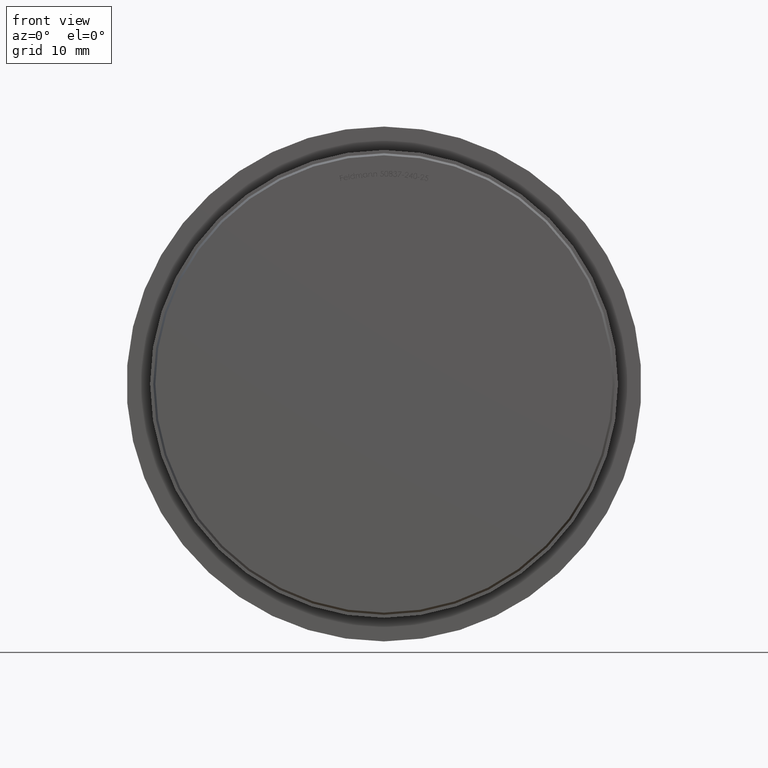
[diagram: clean part render]
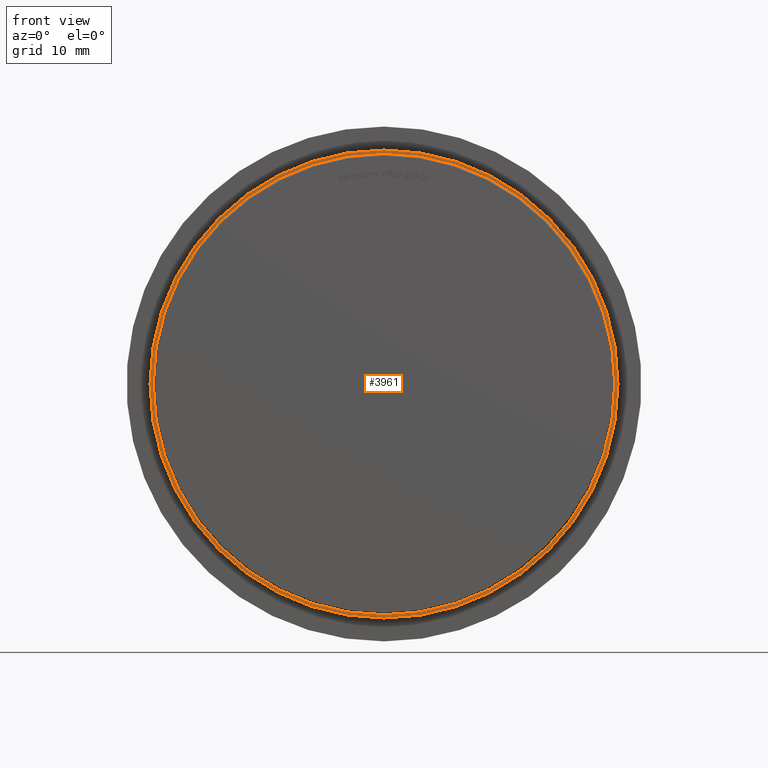
[diagram: same view with one face highlighted and labeled with its STEP entity id]
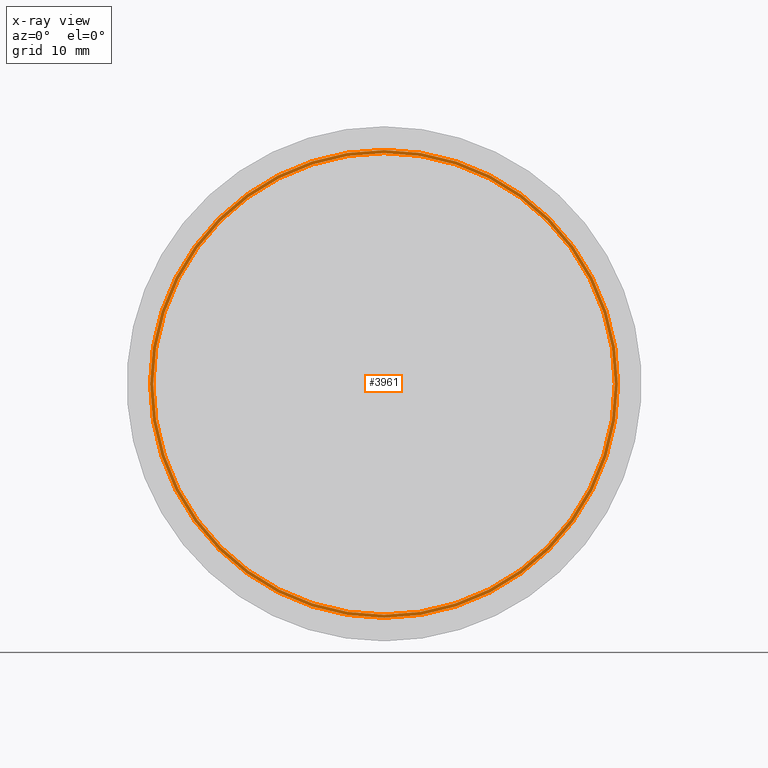
[diagram: x-ray of the same camera — body ghosted, the highlighted face saturated]
A machine part, front view. The second image highlights one B-rep face of the part: STEP entity #3961.
The next image is the same camera in x-ray: the body ghosted, the highlighted face saturated — about 0% of this face is hidden behind the body in this view.
In plain terms, the highlighted planar face has unit normal (0, 1, 0).
Its self-contained STEP definition (entity closure, byte-faithful):
#2201 = ORIENTED_EDGE ( 'NONE', *, *, #10366, .F. ) ;
#2695 = CARTESIAN_POINT ( 'NONE',  ( 0.0000000000000000000, 2.000000000000000000, 21.65000000000000200 ) ) ;
#2895 = CIRCLE ( 'NONE', #7931, 21.95000000000000300 ) ;
#3666 = CARTESIAN_POINT ( 'NONE',  ( 0.0000000000000000000, 2.000000000000000000, 0.0000000000000000000 ) ) ;
#3736 = DIRECTION ( 'NONE',  ( 0.0000000000000000000, 0.0000000000000000000, 1.000000000000000000 ) ) ;
#3911 = EDGE_LOOP ( 'NONE', ( #2201, #5095 ) ) ;
#3961 = ADVANCED_FACE ( 'NONE', ( #15013, #13341 ), #8723, .F. ) ;
#4018 = CIRCLE ( 'NONE', #10822, 21.95000000000000300 ) ;
#4326 = CIRCLE ( 'NONE', #13639, 21.65000000000000200 ) ;
#4710 = ORIENTED_EDGE ( 'NONE', *, *, #13128, .F. ) ;
#4757 = CARTESIAN_POINT ( 'NONE',  ( 2.688099724128440900E-015, 2.000000000000000000, 21.95000000000000300 ) ) ;
#4877 = VERTEX_POINT ( 'NONE', #4757 ) ;
#4978 = DIRECTION ( 'NONE',  ( 0.0000000000000000000, 1.000000000000000000, 0.0000000000000000000 ) ) ;
#5095 = ORIENTED_EDGE ( 'NONE', *, *, #10196, .F. ) ;
#5129 = VERTEX_POINT ( 'NONE', #7168 ) ;
#5356 = DIRECTION ( 'NONE',  ( 0.0000000000000000000, -0.0000000000000000000, 1.000000000000000000 ) ) ;
#6497 = CARTESIAN_POINT ( 'NONE',  ( 0.0000000000000000000, 2.000000000000000000, 0.0000000000000000000 ) ) ;
#7133 = EDGE_LOOP ( 'NONE', ( #8348, #4710 ) ) ;
#7168 = CARTESIAN_POINT ( 'NONE',  ( 0.0000000000000000000, 2.000000000000000000, -21.95000000000000300 ) ) ;
#7931 = AXIS2_PLACEMENT_3D ( 'NONE', #3666, #4978, #14424 ) ;
#7977 = EDGE_CURVE ( 'NONE', #11553, #12086, #4326, .T. ) ;
#8348 = ORIENTED_EDGE ( 'NONE', *, *, #7977, .F. ) ;
#8462 = CARTESIAN_POINT ( 'NONE',  ( 0.0000000000000000000, 2.000000000000000000, 0.0000000000000000000 ) ) ;
#8723 = PLANE ( 'NONE',  #14317 ) ;
#9417 = CIRCLE ( 'NONE', #10339, 21.65000000000000200 ) ;
#9708 = CARTESIAN_POINT ( 'NONE',  ( 2.651360320154019700E-015, 2.000000000000000000, -21.65000000000000200 ) ) ;
#9786 = DIRECTION ( 'NONE',  ( -0.0000000000000000000, -1.000000000000000000, -0.0000000000000000000 ) ) ;
#10196 = EDGE_CURVE ( 'NONE', #4877, #5129, #2895, .T. ) ;
#10339 = AXIS2_PLACEMENT_3D ( 'NONE', #8462, #9786, #3736 ) ;
#10366 = EDGE_CURVE ( 'NONE', #5129, #4877, #4018, .T. ) ;
#10822 = AXIS2_PLACEMENT_3D ( 'NONE', #13970, #13863, #15044 ) ;
#11553 = VERTEX_POINT ( 'NONE', #2695 ) ;
#12086 = VERTEX_POINT ( 'NONE', #9708 ) ;
#12598 = CARTESIAN_POINT ( 'NONE',  ( 0.0000000000000000000, 2.000000000000000000, 0.0000000000000000000 ) ) ;
#12650 = DIRECTION ( 'NONE',  ( 0.0000000000000000000, 1.000000000000000000, 0.0000000000000000000 ) ) ;
#13128 = EDGE_CURVE ( 'NONE', #12086, #11553, #9417, .T. ) ;
#13341 = FACE_OUTER_BOUND ( 'NONE', #3911, .T. ) ;
#13639 = AXIS2_PLACEMENT_3D ( 'NONE', #12598, #14680, #14621 ) ;
#13863 = DIRECTION ( 'NONE',  ( 0.0000000000000000000, 1.000000000000000000, 0.0000000000000000000 ) ) ;
#13970 = CARTESIAN_POINT ( 'NONE',  ( 0.0000000000000000000, 2.000000000000000000, 0.0000000000000000000 ) ) ;
#14317 = AXIS2_PLACEMENT_3D ( 'NONE', #6497, #12650, #5356 ) ;
#14424 = DIRECTION ( 'NONE',  ( 0.0000000000000000000, 0.0000000000000000000, 1.000000000000000000 ) ) ;
#14621 = DIRECTION ( 'NONE',  ( 0.0000000000000000000, 0.0000000000000000000, 1.000000000000000000 ) ) ;
#14680 = DIRECTION ( 'NONE',  ( -0.0000000000000000000, -1.000000000000000000, -0.0000000000000000000 ) ) ;
#15013 = FACE_BOUND ( 'NONE', #7133, .T. ) ;
#15044 = DIRECTION ( 'NONE',  ( 0.0000000000000000000, 0.0000000000000000000, 1.000000000000000000 ) ) ;